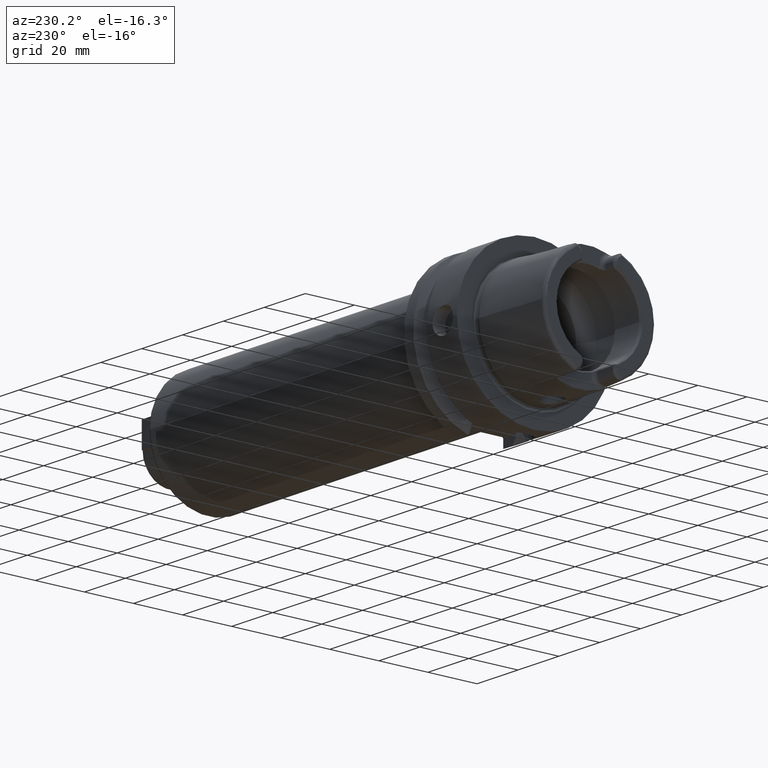
[diagram: clean part render]
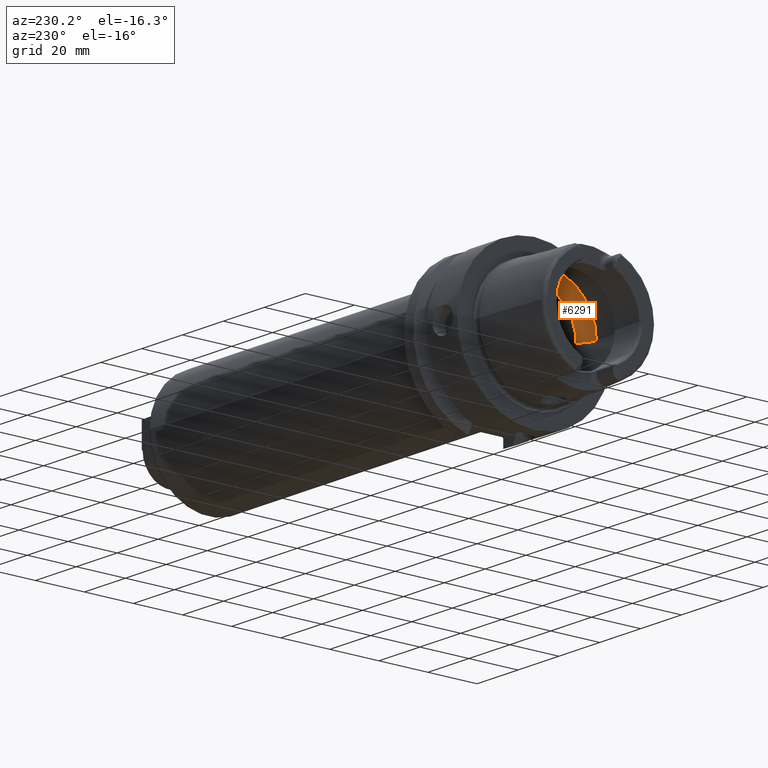
[diagram: same view with one face highlighted and labeled with its STEP entity id]
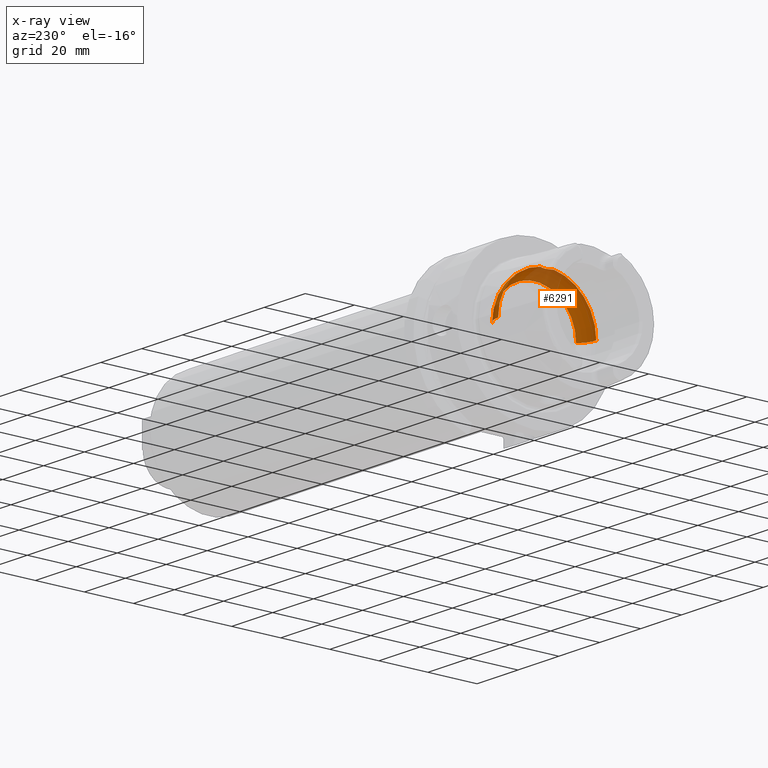
[diagram: x-ray of the same camera — body ghosted, the highlighted face saturated]
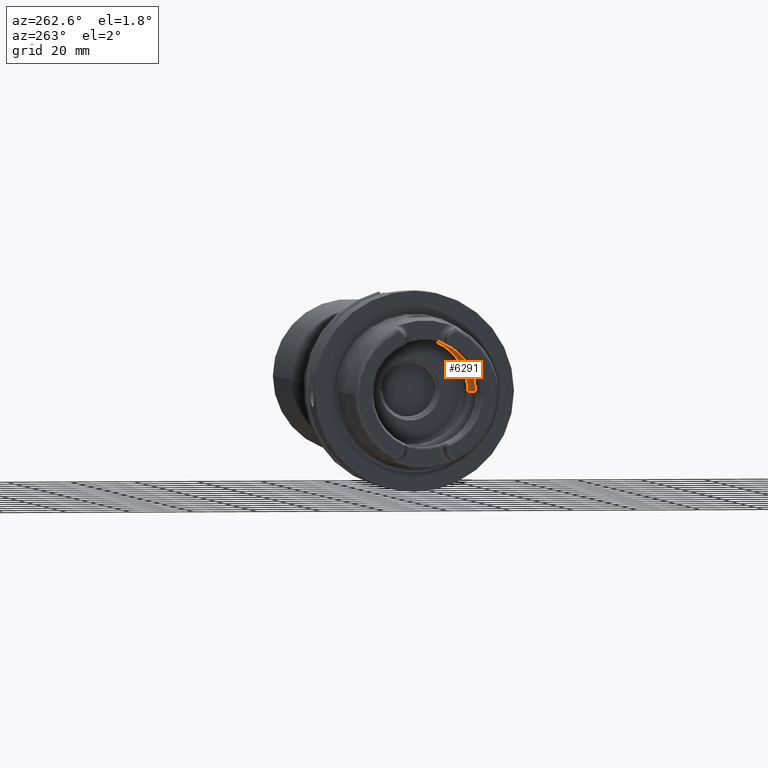
[diagram: same view with one face highlighted and labeled with its STEP entity id]
A machine part, auxiliary view. The second image highlights one B-rep face of the part: STEP entity #6291.
The next image is the same camera in x-ray: the body ghosted, the highlighted face saturated — about 24% of this face is hidden behind the body in this view.
A second angle (auxiliary view) of the same face is appended — the face is thin or edge-on in the first view.
In plain terms, the highlighted toroidal blend (fillet) surface has major radius 12 mm and minor (blend) radius 8 mm.
Its self-contained STEP definition (entity closure, byte-faithful):
#2364=CARTESIAN_POINT('',(-5.25E0,0.E0,1.992470689575E1));
#2365=CARTESIAN_POINT('',(-5.25E0,1.634249880127E-1,1.992470689575E1));
#2366=CARTESIAN_POINT('',(-5.271317000323E0,4.905125142286E-1,
1.992366860007E1));
#2367=CARTESIAN_POINT('',(-5.367938073203E0,9.753406287590E-1,
1.991846757388E1));
#2368=CARTESIAN_POINT('',(-5.525913254439E0,1.440181253243E0,1.990841194030E1));
#2369=CARTESIAN_POINT('',(-5.745012466850E0,1.883704211740E0,1.989126222791E1));
#2370=CARTESIAN_POINT('',(-6.017092970824E0,2.289932260455E0,1.986481338490E1));
#2371=CARTESIAN_POINT('',(-6.231037578916E0,2.534045566496E0,1.983915065875E1));
#2372=CARTESIAN_POINT('',(-6.344997998398E0,2.648294615690E0,1.982388800484E1));
#2374=CARTESIAN_POINT('',(-6.344997998398E0,-2.648294615690E0,
1.982388800484E1));
#2375=CARTESIAN_POINT('',(-6.231045843136E0,-2.534053851646E0,
1.983914955193E1));
#2376=CARTESIAN_POINT('',(-6.017093742818E0,-2.289943440357E0,
1.986481395775E1));
#2377=CARTESIAN_POINT('',(-5.744901596897E0,-1.883527876206E0,
1.989127237006E1));
#2378=CARTESIAN_POINT('',(-5.525828432433E0,-1.439963272778E0,
1.990841763195E1));
#2379=CARTESIAN_POINT('',(-5.367908372542E0,-9.752317929729E-1,
1.991846926373E1));
#2380=CARTESIAN_POINT('',(-5.271289109403E0,-4.903031116233E-1,
1.992367002777E1));
#2381=CARTESIAN_POINT('',(-5.25E0,-1.633414179458E-1,1.992470689575E1));
#2382=CARTESIAN_POINT('',(-5.25E0,0.E0,1.992470689575E1));
#2384=CARTESIAN_POINT('',(-1.E-1,0.E0,0.E0));
#2385=DIRECTION('',(1.E0,0.E0,0.E0));
#2386=DIRECTION('',(0.E0,1.E0,0.E0));
#2387=AXIS2_PLACEMENT_3D('',#2384,#2385,#2386);
#2409=CARTESIAN_POINT('',(-6.344997998398E0,0.E0,0.E0));
#2410=DIRECTION('',(1.E0,0.E0,0.E0));
#2411=DIRECTION('',(0.E0,1.E0,0.E0));
#2412=AXIS2_PLACEMENT_3D('',#2409,#2410,#2411);
#2414=CARTESIAN_POINT('',(-6.344997998398E0,0.E0,0.E0));
#2415=DIRECTION('',(1.E0,0.E0,0.E0));
#2416=DIRECTION('',(0.E0,-1.324147307845E-1,9.911944002421E-1));
#2417=AXIS2_PLACEMENT_3D('',#2414,#2415,#2416);
#2507=CARTESIAN_POINT('',(-6.344997998398E0,1.2E1,0.E0));
#2508=DIRECTION('',(0.E0,0.E0,1.E0));
#2509=DIRECTION('',(7.806247497998E-1,6.25E-1,0.E0));
#2510=AXIS2_PLACEMENT_3D('',#2507,#2508,#2509);
#2517=CARTESIAN_POINT('',(-6.344997998398E0,-1.2E1,0.E0));
#2518=DIRECTION('',(0.E0,0.E0,-1.E0));
#2519=DIRECTION('',(7.806247497998E-1,-6.25E-1,0.E0));
#2520=AXIS2_PLACEMENT_3D('',#2517,#2518,#2519);
#2786=CARTESIAN_POINT('',(-1.E-1,1.7E1,0.E0));
#2787=VERTEX_POINT('',#2786);
#2788=CARTESIAN_POINT('',(-6.344997998398E0,2.E1,0.E0));
#2789=VERTEX_POINT('',#2788);
#2798=CARTESIAN_POINT('',(-1.E-1,-1.7E1,0.E0));
#2799=VERTEX_POINT('',#2798);
#2800=CARTESIAN_POINT('',(-6.344997998398E0,-2.E1,0.E0));
#2801=VERTEX_POINT('',#2800);
#2969=VERTEX_POINT('',#2364);
#2970=VERTEX_POINT('',#2372);
#2971=VERTEX_POINT('',#2374);
#6272=CARTESIAN_POINT('',(-6.344997998398E0,0.E0,0.E0));
#6273=DIRECTION('',(1.E0,0.E0,0.E0));
#6274=DIRECTION('',(0.E0,-1.E0,0.E0));
#6275=AXIS2_PLACEMENT_3D('',#6272,#6273,#6274);
#6276=TOROIDAL_SURFACE('',#6275,1.2E1,8.E0);
#6277=ORIENTED_EDGE('',*,*,#6249,.F.);
#6278=ORIENTED_EDGE('',*,*,#6015,.F.);
#6280=ORIENTED_EDGE('',*,*,#6279,.T.);
#6282=ORIENTED_EDGE('',*,*,#6281,.F.);
#6284=ORIENTED_EDGE('',*,*,#6283,.F.);
#6286=ORIENTED_EDGE('',*,*,#6285,.T.);
#6288=ORIENTED_EDGE('',*,*,#6287,.T.);
#6289=EDGE_LOOP('',(#6277,#6278,#6280,#6282,#6284,#6286,#6288));
#6290=FACE_OUTER_BOUND('',#6289,.F.);
#6291=ADVANCED_FACE('',(#6290),#6276,.F.);
#2373=B_SPLINE_CURVE_WITH_KNOTS('',3,(#2364,#2365,#2366,#2367,#2368,#2369,#2370,
#2371,#2372),.UNSPECIFIED.,.F.,.F.,(4,1,1,1,1,1,4),(0.E0,1.666666666667E-1,
3.333333333333E-1,5.E-1,6.666666666667E-1,8.333333333333E-1,1.E0),
.UNSPECIFIED.);
#2383=B_SPLINE_CURVE_WITH_KNOTS('',3,(#2374,#2375,#2376,#2377,#2378,#2379,#2380,
#2381,#2382),.UNSPECIFIED.,.F.,.F.,(4,1,1,1,1,1,4),(0.E0,1.666666666667E-1,
3.333333333333E-1,5.E-1,6.666666666667E-1,8.333333333333E-1,1.E0),
.UNSPECIFIED.);
#2388=CIRCLE('',#2387,1.7E1);
#2413=CIRCLE('',#2412,2.E1);
#2418=CIRCLE('',#2417,2.E1);
#2511=CIRCLE('',#2510,8.E0);
#2521=CIRCLE('',#2520,8.E0);
#6015=EDGE_CURVE('',#2971,#2969,#2383,.T.);
#6249=EDGE_CURVE('',#2969,#2970,#2373,.T.);
#6279=EDGE_CURVE('',#2971,#2801,#2418,.T.);
#6281=EDGE_CURVE('',#2799,#2801,#2521,.T.);
#6283=EDGE_CURVE('',#2787,#2799,#2388,.T.);
#6285=EDGE_CURVE('',#2787,#2789,#2511,.T.);
#6287=EDGE_CURVE('',#2789,#2970,#2413,.T.);